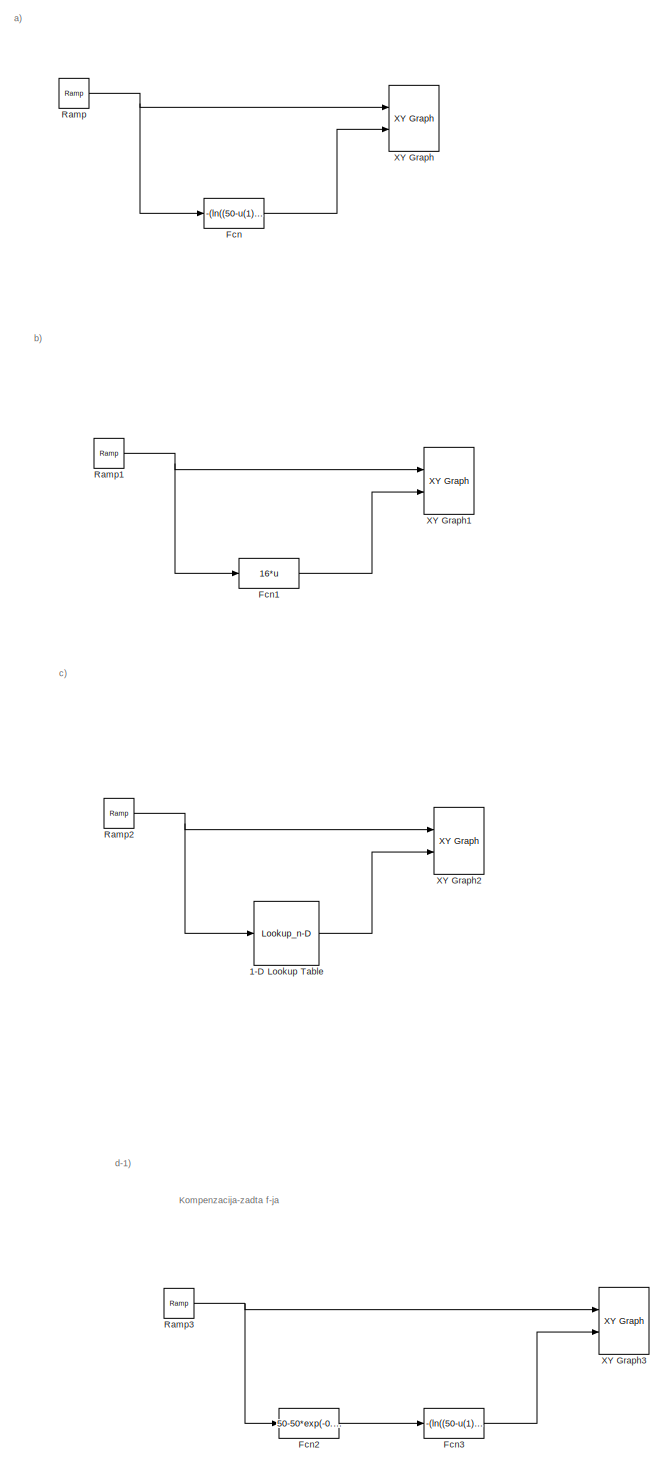
[diagram: root canvas - part 1/2, full width, top band]
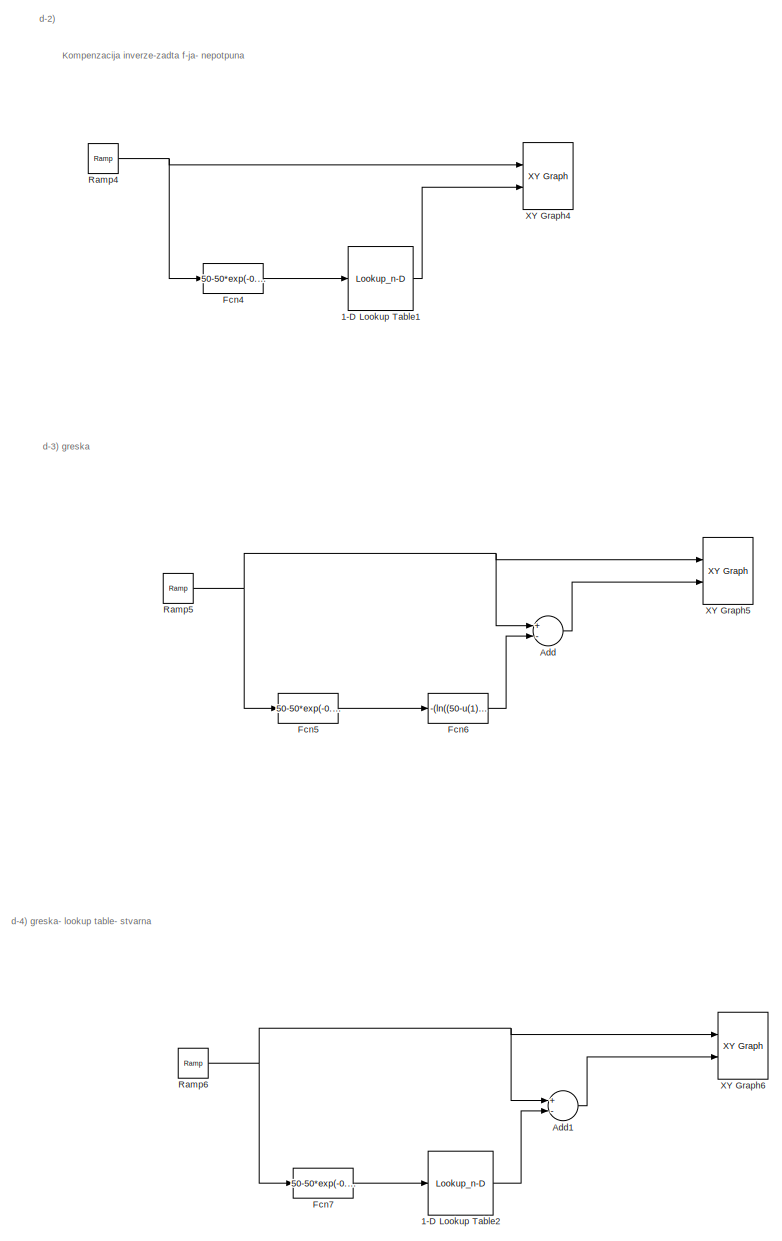
[diagram: root canvas - part 2/2, full width, bottom band]
MODEL slx_932e98de32de
KIND model
CONFIG AbsTol = auto
CONFIG EnableMultiTasking = off
CONFIG FixedStep = auto
CONFIG MaxStep = auto
CONFIG MinStep = auto
CONFIG RelTol = 1e-3
CONFIG SampleTimeConstraint = Unconstrained
CONFIG Solver = VariableStepAuto
CONFIG SolverName = VariableStepAuto
CONFIG StartTime = 0.0
CONFIG StopTime = 800
BLOCK [Lookup_n-D] 1-D Lookup Table
  BreakpointsForDimension1 = 50-50*exp(-0.005*[0:100:800])
  InternalRulePriority = Speed
  NumberOfTableDimensions = 1
  Ports = [1, 1]
  RndMeth = Simplest
  Table = [0:100:800]
BLOCK [Lookup_n-D] 1-D Lookup Table1
  BreakpointsForDimension1 = 50-50*exp(-0.005*[0:100:800])
  InternalRulePriority = Speed
  NumberOfTableDimensions = 1
  Ports = [1, 1]
  RndMeth = Simplest
  Table = [0:100:800]
BLOCK [Lookup_n-D] 1-D Lookup Table2
  BreakpointsForDimension1 = 50-50*exp(-0.005*[0:100:800])
  InternalRulePriority = Speed
  NumberOfTableDimensions = 1
  Ports = [1, 1]
  RndMeth = Simplest
  Table = [0:100:800]
BLOCK [Sum] Add
  InputSameDT = off
  Inputs = +-
  OutDataTypeStr = Inherit: Inherit via internal rule
  Ports = [2, 1]
  SaturateOnIntegerOverflow = off
BLOCK [Sum] Add1
  InputSameDT = off
  Inputs = +-
  OutDataTypeStr = Inherit: Inherit via internal rule
  Ports = [2, 1]
  SaturateOnIntegerOverflow = off
BLOCK [Fcn] Fcn
  Expr = -(ln((50-u(1))/50))/(0.005)
BLOCK [Fcn] Fcn1
  Expr = 16*u
BLOCK [Fcn] Fcn2
  Expr = 50-50*exp(-0.005*u)
BLOCK [Fcn] Fcn3
  Expr = -(ln((50-u(1))/50))/(0.005)
BLOCK [Fcn] Fcn4
  Expr = 50-50*exp(-0.005*u)
BLOCK [Fcn] Fcn5
  Expr = 50-50*exp(-0.005*u)
BLOCK [Fcn] Fcn6
  Expr = -(ln((50-u(1))/50))/(0.005)
BLOCK [Fcn] Fcn7
  Expr = 50-50*exp(-0.005*u)
BLOCK [Reference] Ramp  REF=simulink/Sources/Ramp
  Ports = [0, 1]
  SourceBlock = simulink/Sources/Ramp
  SourceProductBaseCode = SL
  SourceProductName = Simulink
  SourceType = Ramp
BLOCK [Reference] Ramp1  REF=simulink/Sources/Ramp
  Ports = [0, 1]
  SourceBlock = simulink/Sources/Ramp
  SourceProductBaseCode = SL
  SourceProductName = Simulink
  SourceType = Ramp
BLOCK [Reference] Ramp2  REF=simulink/Sources/Ramp
  Ports = [0, 1]
  SourceBlock = simulink/Sources/Ramp
  SourceProductBaseCode = SL
  SourceProductName = Simulink
  SourceType = Ramp
BLOCK [Reference] Ramp3  REF=simulink/Sources/Ramp
  Ports = [0, 1]
  SourceBlock = simulink/Sources/Ramp
  SourceProductBaseCode = SL
  SourceProductName = Simulink
  SourceType = Ramp
BLOCK [Reference] Ramp4  REF=simulink/Sources/Ramp
  Ports = [0, 1]
  SourceBlock = simulink/Sources/Ramp
  SourceProductBaseCode = SL
  SourceProductName = Simulink
  SourceType = Ramp
BLOCK [Reference] Ramp5  REF=simulink/Sources/Ramp
  Ports = [0, 1]
  SourceBlock = simulink/Sources/Ramp
  SourceProductBaseCode = SL
  SourceProductName = Simulink
  SourceType = Ramp
BLOCK [Reference] Ramp6  REF=simulink/Sources/Ramp
  Ports = [0, 1]
  SourceBlock = simulink/Sources/Ramp
  SourceProductBaseCode = SL
  SourceProductName = Simulink
  SourceType = Ramp
BLOCK [Reference] XY Graph  REF=simulink/Sinks/XY Graph
  Ports = [2]
  SourceBlock = simulink/Sinks/XY Graph
  SourceProductBaseCode = SL
  SourceProductName = Simulink
  SourceType = XY scope.
BLOCK [Reference] XY Graph1  REF=simulink/Sinks/XY Graph
  Ports = [2]
  SourceBlock = simulink/Sinks/XY Graph
  SourceProductBaseCode = SL
  SourceProductName = Simulink
  SourceType = XY scope.
BLOCK [Reference] XY Graph2  REF=simulink/Sinks/XY Graph
  Ports = [2]
  SourceBlock = simulink/Sinks/XY Graph
  SourceProductBaseCode = SL
  SourceProductName = Simulink
  SourceType = XY scope.
BLOCK [Reference] XY Graph3  REF=simulink/Sinks/XY Graph
  Ports = [2]
  SourceBlock = simulink/Sinks/XY Graph
  SourceProductBaseCode = SL
  SourceProductName = Simulink
  SourceType = XY scope.
BLOCK [Reference] XY Graph4  REF=simulink/Sinks/XY Graph
  Ports = [2]
  SourceBlock = simulink/Sinks/XY Graph
  SourceProductBaseCode = SL
  SourceProductName = Simulink
  SourceType = XY scope.
BLOCK [Reference] XY Graph5  REF=simulink/Sinks/XY Graph
  Ports = [2]
  SourceBlock = simulink/Sinks/XY Graph
  SourceProductBaseCode = SL
  SourceProductName = Simulink
  SourceType = XY scope.
BLOCK [Reference] XY Graph6  REF=simulink/Sinks/XY Graph
  Ports = [2]
  SourceBlock = simulink/Sinks/XY Graph
  SourceProductBaseCode = SL
  SourceProductName = Simulink
  SourceType = XY scope.
ANNOTATION (root): Kompenzacija-zadta f-ja
ANNOTATION (root): Kompenzacija inverze-zadta f-ja- nepotpuna
ANNOTATION (root): d-3) greska
ANNOTATION (root): d-4) greska- lookup table- stvarna
ANNOTATION (root): a)
ANNOTATION (root): b)
ANNOTATION (root): c)
ANNOTATION (root): d-1)
ANNOTATION (root): d-2)
LINE 1-D Lookup Table1:1 -> XY Graph4:2
LINE 1-D Lookup Table2:1 -> Add1:2
LINE 1-D Lookup Table:1 -> XY Graph2:2
LINE Add1:1 -> XY Graph6:2
LINE Add:1 -> XY Graph5:2
LINE Fcn1:1 -> XY Graph1:2
LINE Fcn2:1 -> Fcn3:1
LINE Fcn3:1 -> XY Graph3:2
LINE Fcn4:1 -> 1-D Lookup Table1:1
LINE Fcn5:1 -> Fcn6:1
LINE Fcn6:1 -> Add:2
LINE Fcn7:1 -> 1-D Lookup Table2:1
LINE Fcn:1 -> XY Graph:2
NET Ramp1:1 -> Fcn1:1, XY Graph1:1
NET Ramp2:1 -> 1-D Lookup Table:1, XY Graph2:1
NET Ramp3:1 -> Fcn2:1, XY Graph3:1
NET Ramp4:1 -> Fcn4:1, XY Graph4:1
NET Ramp5:1 -> Add:1, Fcn5:1, XY Graph5:1
NET Ramp6:1 -> Add1:1, Fcn7:1, XY Graph6:1
NET Ramp:1 -> Fcn:1, XY Graph:1
note: NET lines group one-source signal fan-out (src -> all destinations, sorted); 1:1 wires keep LINE
